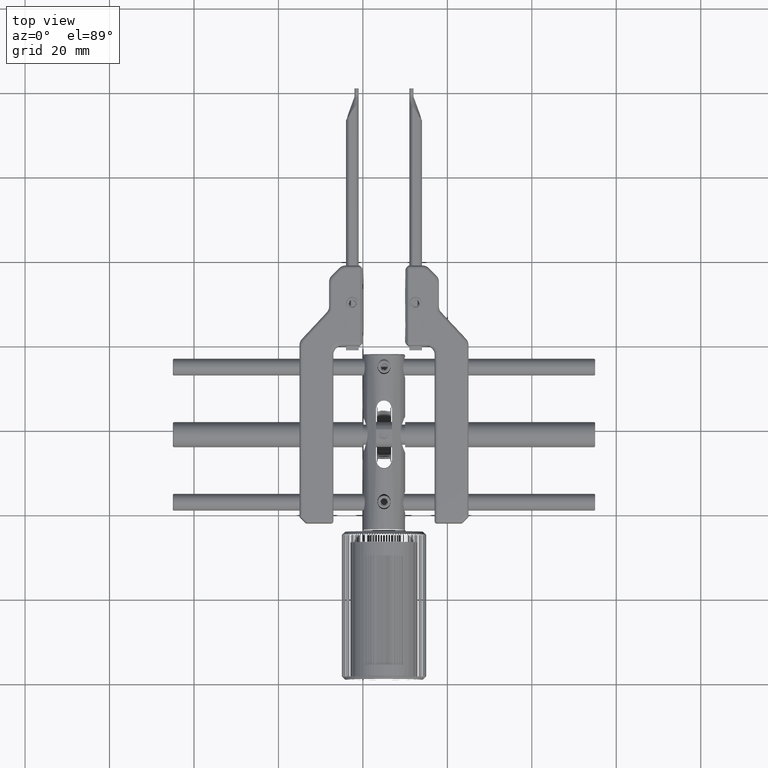
[diagram: clean part render]
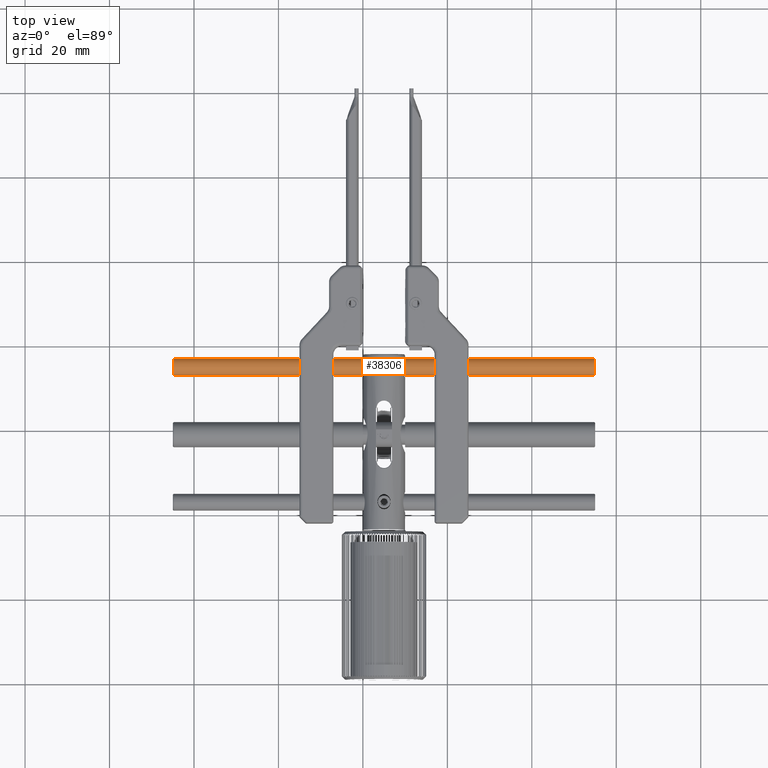
[diagram: same view with one face highlighted and labeled with its STEP entity id]
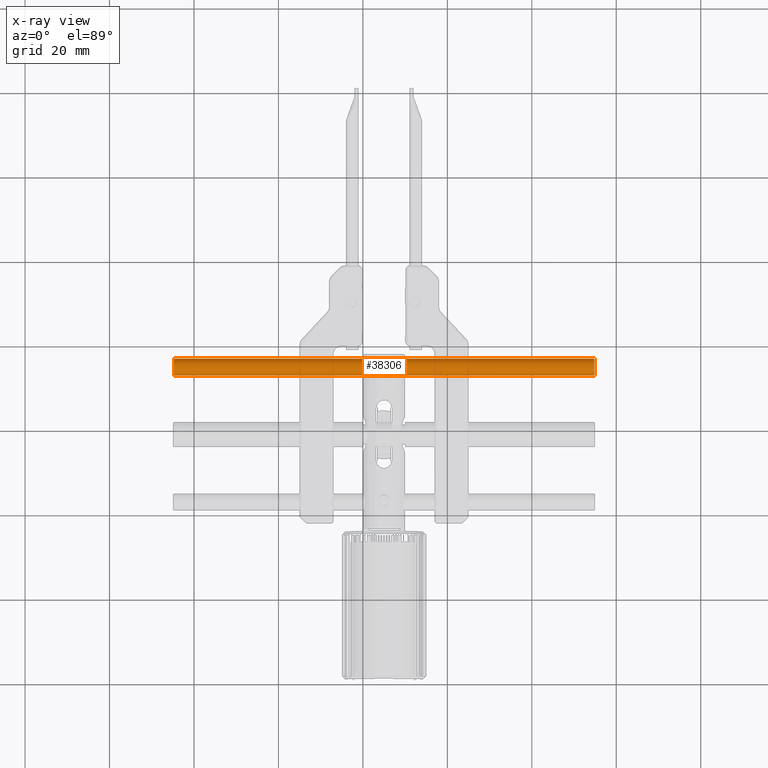
[diagram: x-ray of the same camera — body ghosted, the highlighted face saturated]
A machine part, top view. The second image highlights one B-rep face of the part: STEP entity #38306.
The next image is the same camera in x-ray: the body ghosted, the highlighted face saturated — about 0% of this face is hidden behind the body in this view.
In plain terms, the highlighted cylindrical surface (bore or boss wall) has radius 2 mm, axis along (-1, 0, 0).
Its self-contained STEP definition (entity closure, byte-faithful):
#43 = VERTEX_POINT ( 'NONE', #16403 ) ;
#52 = CARTESIAN_POINT ( 'NONE',  ( 75.00000000000001421, -5.000000000000004441, -8.673617379884035472E-16 ) ) ;
#77 = CARTESIAN_POINT ( 'NONE',  ( -24.80000000000004334, -5.000000000000004441, -8.673617379884035472E-16 ) ) ;
#1384 = DIRECTION ( 'NONE',  ( 0.000000000000000000, 0.000000000000000000, 1.000000000000000000 ) ) ;
#5628 = EDGE_CURVE ( 'NONE', #37398, #37398, #20570, .T. ) ;
#9033 = AXIS2_PLACEMENT_3D ( 'NONE', #77, #30965, #41703 ) ;
#10157 = DIRECTION ( 'NONE',  ( -1.000000000000000000, 0.000000000000000000, 0.000000000000000000 ) ) ;
#13721 = FACE_OUTER_BOUND ( 'NONE', #34572, .T. ) ;
#16403 = CARTESIAN_POINT ( 'NONE',  ( -24.80000000000004334, -5.000000000000004441, 1.999999999999999112 ) ) ;
#19155 = AXIS2_PLACEMENT_3D ( 'NONE', #24658, #34938, #1384 ) ;
#19539 = AXIS2_PLACEMENT_3D ( 'NONE', #52, #10157, #19995 ) ;
#19718 = ORIENTED_EDGE ( 'NONE', *, *, #5628, .T. ) ;
#19995 = DIRECTION ( 'NONE',  ( 0.000000000000000000, 0.000000000000000000, 1.000000000000000000 ) ) ;
#20570 = CIRCLE ( 'NONE', #19155, 2.000000000000000000 ) ;
#21508 = EDGE_CURVE ( 'NONE', #43, #43, #44029, .T. ) ;
#23996 = CARTESIAN_POINT ( 'NONE',  ( 74.80000000000002558, -5.000000000000004441, 1.999999999999999112 ) ) ;
#24658 = CARTESIAN_POINT ( 'NONE',  ( 74.80000000000002558, -5.000000000000004441, -8.673617379884035472E-16 ) ) ;
#29841 = FACE_OUTER_BOUND ( 'NONE', #42838, .T. ) ;
#30965 = DIRECTION ( 'NONE',  ( 1.000000000000000000, -0.000000000000000000, -0.000000000000000000 ) ) ;
#34572 = EDGE_LOOP ( 'NONE', ( #39641 ) ) ;
#34938 = DIRECTION ( 'NONE',  ( -1.000000000000000000, 0.000000000000000000, 0.000000000000000000 ) ) ;
#37398 = VERTEX_POINT ( 'NONE', #23996 ) ;
#38306 = ADVANCED_FACE ( 'NONE', ( #13721, #29841 ), #40561, .T. ) ;
#39641 = ORIENTED_EDGE ( 'NONE', *, *, #21508, .T. ) ;
#40561 = CYLINDRICAL_SURFACE ( 'NONE', #19539, 2.000000000000000000 ) ;
#41703 = DIRECTION ( 'NONE',  ( 0.000000000000000000, 0.000000000000000000, 1.000000000000000000 ) ) ;
#42838 = EDGE_LOOP ( 'NONE', ( #19718 ) ) ;
#44029 = CIRCLE ( 'NONE', #9033, 2.000000000000000000 ) ;